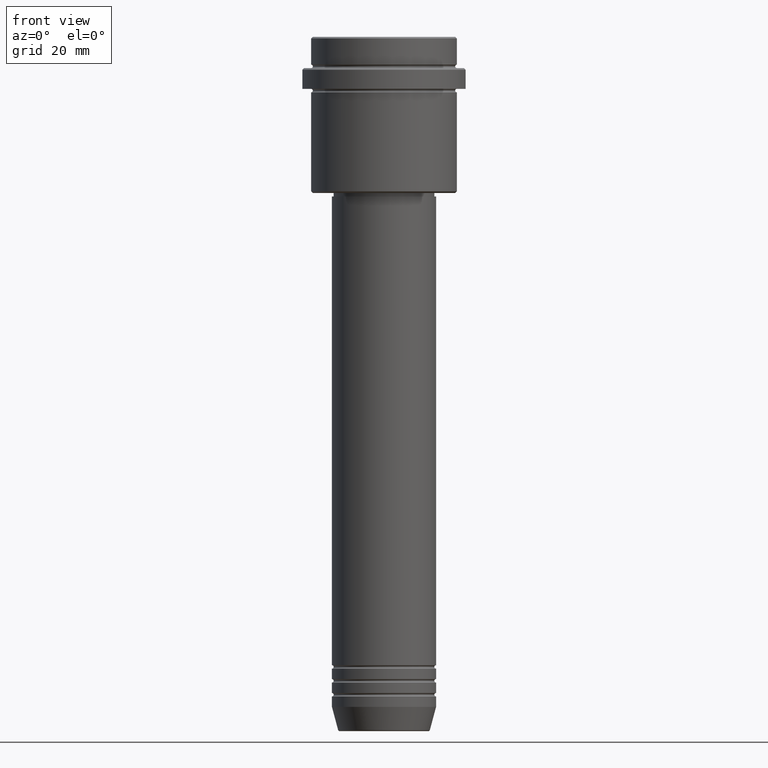
[diagram: clean part render]
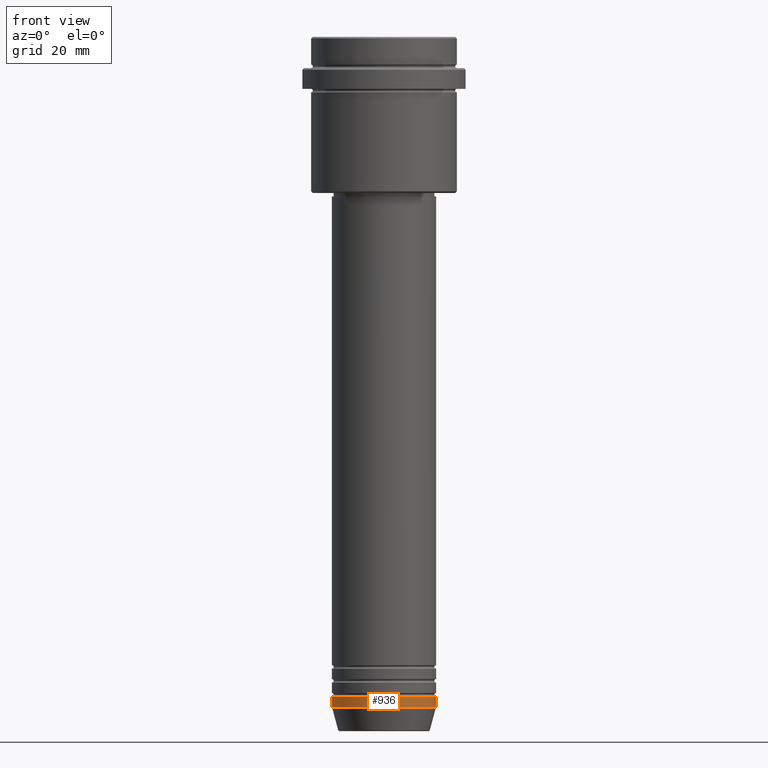
[diagram: same view with one face highlighted and labeled with its STEP entity id]
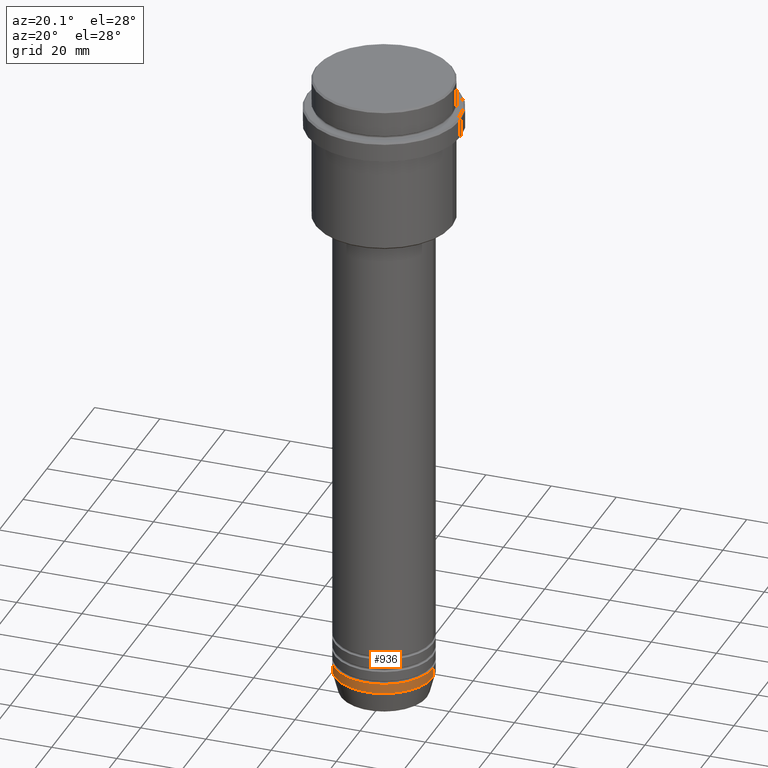
[diagram: same view with one face highlighted and labeled with its STEP entity id]
A machine part, front view. The second image highlights one B-rep face of the part: STEP entity #936.
A second angle (auxiliary view) of the same face is appended — the face is thin or edge-on in the first view.
In plain terms, the highlighted cylindrical surface (partial cylindrical patch) has radius 15 mm, axis along (-0, -0, 1).
Its self-contained STEP definition (entity closure, byte-faithful):
#43 = DIRECTION ( 'NONE',  ( -0.000000000000000000, -0.000000000000000000, 1.000000000000000000 ) ) ;
#51 = VERTEX_POINT ( 'NONE', #1389 ) ;
#55 = CARTESIAN_POINT ( 'NONE',  ( 0.000000000000000000, 0.000000000000000000, -190.0000000000000000 ) ) ;
#59 = ORIENTED_EDGE ( 'NONE', *, *, #734, .F. ) ;
#85 = LINE ( 'NONE', #1417, #597 ) ;
#114 = CARTESIAN_POINT ( 'NONE',  ( 15.00000000000000000, 0.000000000000000000, -193.0000000000000000 ) ) ;
#224 = ORIENTED_EDGE ( 'NONE', *, *, #1302, .T. ) ;
#279 = DIRECTION ( 'NONE',  ( -0.000000000000000000, -0.000000000000000000, 1.000000000000000000 ) ) ;
#306 = DIRECTION ( 'NONE',  ( -0.000000000000000000, -0.000000000000000000, 1.000000000000000000 ) ) ;
#361 = DIRECTION ( 'NONE',  ( 1.000000000000000000, 0.000000000000000000, 0.000000000000000000 ) ) ;
#406 = FACE_OUTER_BOUND ( 'NONE', #668, .T. ) ;
#438 = EDGE_CURVE ( 'NONE', #708, #510, #85, .T. ) ;
#439 = LINE ( 'NONE', #873, #764 ) ;
#510 = VERTEX_POINT ( 'NONE', #1289 ) ;
#597 = VECTOR ( 'NONE', #306, 1000.000000000000000 ) ;
#648 = AXIS2_PLACEMENT_3D ( 'NONE', #686, #279, #904 ) ;
#668 = EDGE_LOOP ( 'NONE', ( #59, #224, #1153, #818 ) ) ;
#686 = CARTESIAN_POINT ( 'NONE',  ( 0.000000000000000000, 0.000000000000000000, -193.0000000000000000 ) ) ;
#708 = VERTEX_POINT ( 'NONE', #114 ) ;
#734 = EDGE_CURVE ( 'NONE', #51, #1028, #439, .T. ) ;
#747 = CIRCLE ( 'NONE', #648, 15.00000000000000000 ) ;
#764 = VECTOR ( 'NONE', #43, 1000.000000000000000 ) ;
#818 = ORIENTED_EDGE ( 'NONE', *, *, #1262, .F. ) ;
#838 = DIRECTION ( 'NONE',  ( 1.000000000000000000, 0.000000000000000000, 0.000000000000000000 ) ) ;
#844 = CARTESIAN_POINT ( 'NONE',  ( 0.000000000000000000, 0.000000000000000000, 0.000000000000000000 ) ) ;
#862 = DIRECTION ( 'NONE',  ( -0.000000000000000000, -0.000000000000000000, 1.000000000000000000 ) ) ;
#873 = CARTESIAN_POINT ( 'NONE',  ( -15.00000000000000000, 1.836970198721029589E-15, 0.000000000000000000 ) ) ;
#882 = AXIS2_PLACEMENT_3D ( 'NONE', #844, #862, #838 ) ;
#904 = DIRECTION ( 'NONE',  ( 1.000000000000000000, 0.000000000000000000, 0.000000000000000000 ) ) ;
#936 = ADVANCED_FACE ( 'NONE', ( #406 ), #1287, .T. ) ;
#1028 = VERTEX_POINT ( 'NONE', #1320 ) ;
#1125 = DIRECTION ( 'NONE',  ( -0.000000000000000000, -0.000000000000000000, 1.000000000000000000 ) ) ;
#1153 = ORIENTED_EDGE ( 'NONE', *, *, #438, .T. ) ;
#1163 = CIRCLE ( 'NONE', #1189, 15.00000000000000000 ) ;
#1189 = AXIS2_PLACEMENT_3D ( 'NONE', #55, #1125, #361 ) ;
#1262 = EDGE_CURVE ( 'NONE', #1028, #510, #1163, .T. ) ;
#1287 = CYLINDRICAL_SURFACE ( 'NONE', #882, 15.00000000000000000 ) ;
#1289 = CARTESIAN_POINT ( 'NONE',  ( 15.00000000000000000, 0.000000000000000000, -190.0000000000000000 ) ) ;
#1302 = EDGE_CURVE ( 'NONE', #51, #708, #747, .T. ) ;
#1320 = CARTESIAN_POINT ( 'NONE',  ( -15.00000000000000000, 1.836970198721029589E-15, -190.0000000000000000 ) ) ;
#1389 = CARTESIAN_POINT ( 'NONE',  ( -15.00000000000000000, 1.836970198721029589E-15, -193.0000000000000000 ) ) ;
#1417 = CARTESIAN_POINT ( 'NONE',  ( 15.00000000000000000, 0.000000000000000000, 0.000000000000000000 ) ) ;